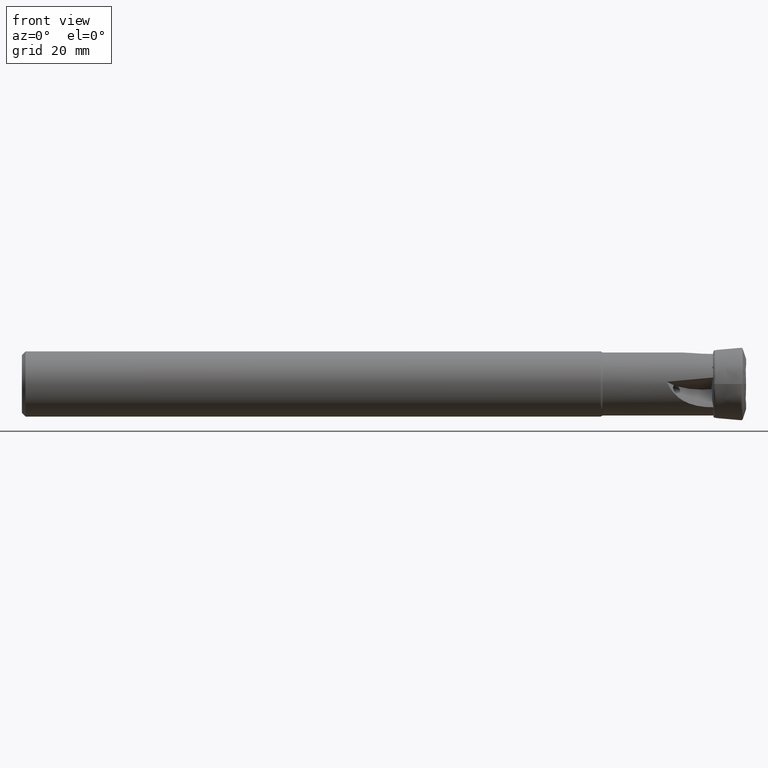
[diagram: clean part render]
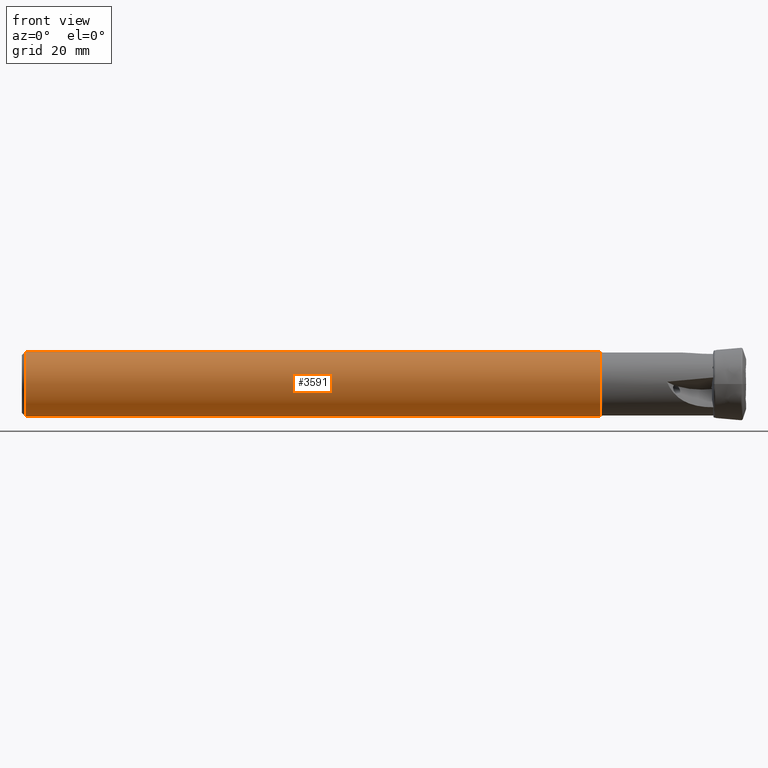
[diagram: same view with one face highlighted and labeled with its STEP entity id]
A machine part, front view. The second image highlights one B-rep face of the part: STEP entity #3591.
In plain terms, the highlighted cylindrical surface (edge-blend (fillet) strip) has radius 9 mm, axis along (-1, -0, -0).
Its self-contained STEP definition (entity closure, byte-faithful):
#118 = DIRECTION ( 'NONE',  ( 0.0000000000000000000, 0.0000000000000000000, 1.000000000000000000 ) ) ;
#290 = VECTOR ( 'NONE', #857, 1000.000000000000000 ) ;
#351 = VERTEX_POINT ( 'NONE', #3531 ) ;
#422 = CARTESIAN_POINT ( 'NONE',  ( 159.8499999999999900, 0.0000000000000000000, 0.0000000000000000000 ) ) ;
#564 = CARTESIAN_POINT ( 'NONE',  ( 1.000000000000000000, 1.102182119232615500E-015, 8.999999999999982200 ) ) ;
#760 = DIRECTION ( 'NONE',  ( 0.0000000000000000000, 0.0000000000000000000, 1.000000000000000000 ) ) ;
#839 = VECTOR ( 'NONE', #3418, 1000.000000000000000 ) ;
#852 = EDGE_CURVE ( 'NONE', #1968, #3810, #3949, .T. ) ;
#857 = DIRECTION ( 'NONE',  ( -1.000000000000000000, -0.0000000000000000000, -0.0000000000000000000 ) ) ;
#1161 = CARTESIAN_POINT ( 'NONE',  ( 0.0000000000000000000, 0.0000000000000000000, 8.999999999999991100 ) ) ;
#1523 = EDGE_CURVE ( 'NONE', #2541, #3810, #1585, .T. ) ;
#1551 = CYLINDRICAL_SURFACE ( 'NONE', #1812, 8.999999999999991100 ) ;
#1585 = LINE ( 'NONE', #1161, #290 ) ;
#1737 = AXIS2_PLACEMENT_3D ( 'NONE', #2065, #3613, #118 ) ;
#1812 = AXIS2_PLACEMENT_3D ( 'NONE', #1895, #3757, #4074 ) ;
#1866 = CARTESIAN_POINT ( 'NONE',  ( 159.8499999999999900, 0.0000000000000000000, 9.000000000000000000 ) ) ;
#1895 = CARTESIAN_POINT ( 'NONE',  ( 0.0000000000000000000, 0.0000000000000000000, 0.0000000000000000000 ) ) ;
#1908 = EDGE_CURVE ( 'NONE', #351, #2541, #2511, .T. ) ;
#1959 = LINE ( 'NONE', #4080, #839 ) ;
#1968 = VERTEX_POINT ( 'NONE', #4029 ) ;
#2065 = CARTESIAN_POINT ( 'NONE',  ( 1.000000000000000000, 0.0000000000000000000, 0.0000000000000000000 ) ) ;
#2144 = AXIS2_PLACEMENT_3D ( 'NONE', #422, #2693, #760 ) ;
#2511 = CIRCLE ( 'NONE', #2144, 9.000000000000000000 ) ;
#2521 = FACE_OUTER_BOUND ( 'NONE', #2706, .T. ) ;
#2541 = VERTEX_POINT ( 'NONE', #1866 ) ;
#2553 = EDGE_CURVE ( 'NONE', #351, #1968, #1959, .T. ) ;
#2693 = DIRECTION ( 'NONE',  ( -1.000000000000000000, -0.0000000000000000000, -0.0000000000000000000 ) ) ;
#2706 = EDGE_LOOP ( 'NONE', ( #3438, #2863, #3833, #2866 ) ) ;
#2863 = ORIENTED_EDGE ( 'NONE', *, *, #1908, .T. ) ;
#2866 = ORIENTED_EDGE ( 'NONE', *, *, #852, .F. ) ;
#3418 = DIRECTION ( 'NONE',  ( -1.000000000000000000, -0.0000000000000000000, -0.0000000000000000000 ) ) ;
#3438 = ORIENTED_EDGE ( 'NONE', *, *, #2553, .F. ) ;
#3531 = CARTESIAN_POINT ( 'NONE',  ( 159.8499999999999900, 1.102182119232617700E-015, -9.000000000000000000 ) ) ;
#3591 = ADVANCED_FACE ( 'NONE', ( #2521 ), #1551, .T. ) ;
#3613 = DIRECTION ( 'NONE',  ( -1.000000000000000000, -0.0000000000000000000, -0.0000000000000000000 ) ) ;
#3757 = DIRECTION ( 'NONE',  ( -1.000000000000000000, -0.0000000000000000000, -0.0000000000000000000 ) ) ;
#3810 = VERTEX_POINT ( 'NONE', #564 ) ;
#3833 = ORIENTED_EDGE ( 'NONE', *, *, #1523, .T. ) ;
#3949 = CIRCLE ( 'NONE', #1737, 8.999999999999982200 ) ;
#4029 = CARTESIAN_POINT ( 'NONE',  ( 1.000000000000000000, 0.0000000000000000000, -8.999999999999982200 ) ) ;
#4074 = DIRECTION ( 'NONE',  ( 0.0000000000000000000, 0.0000000000000000000, 1.000000000000000000 ) ) ;
#4080 = CARTESIAN_POINT ( 'NONE',  ( 0.0000000000000000000, 1.102182119232616700E-015, -8.999999999999991100 ) ) ;